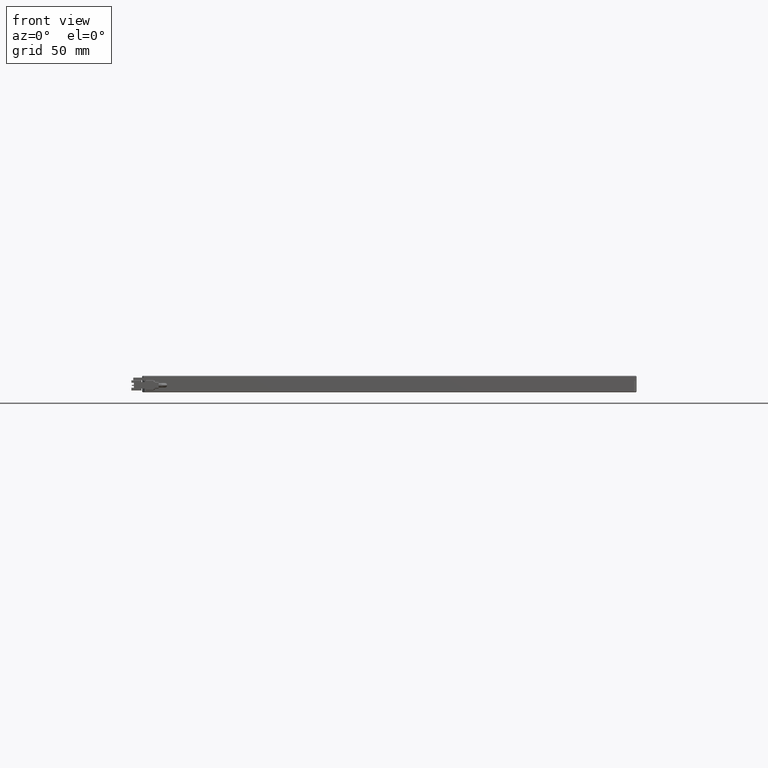
[diagram: clean part render]
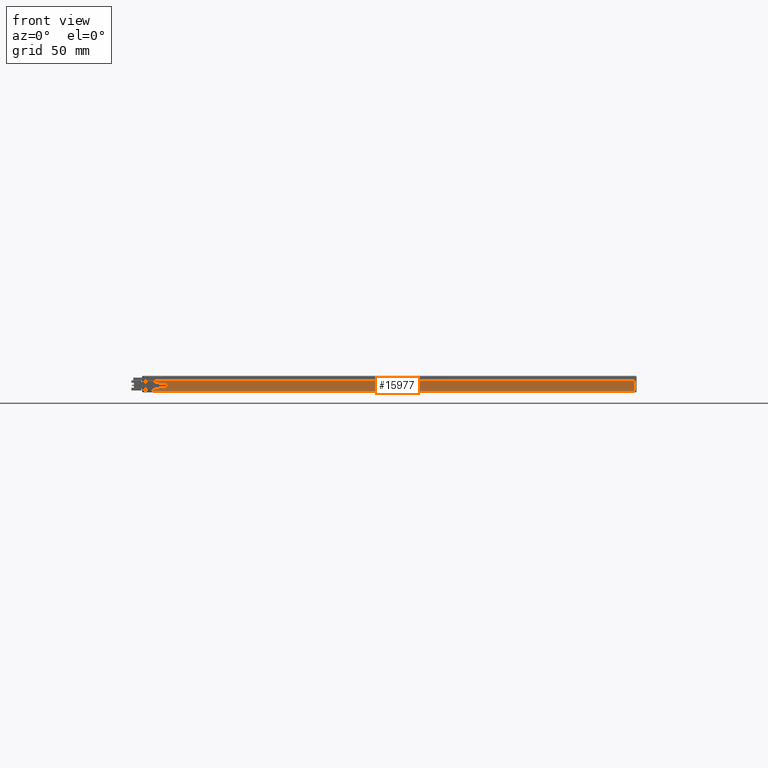
[diagram: same view with one face highlighted and labeled with its STEP entity id]
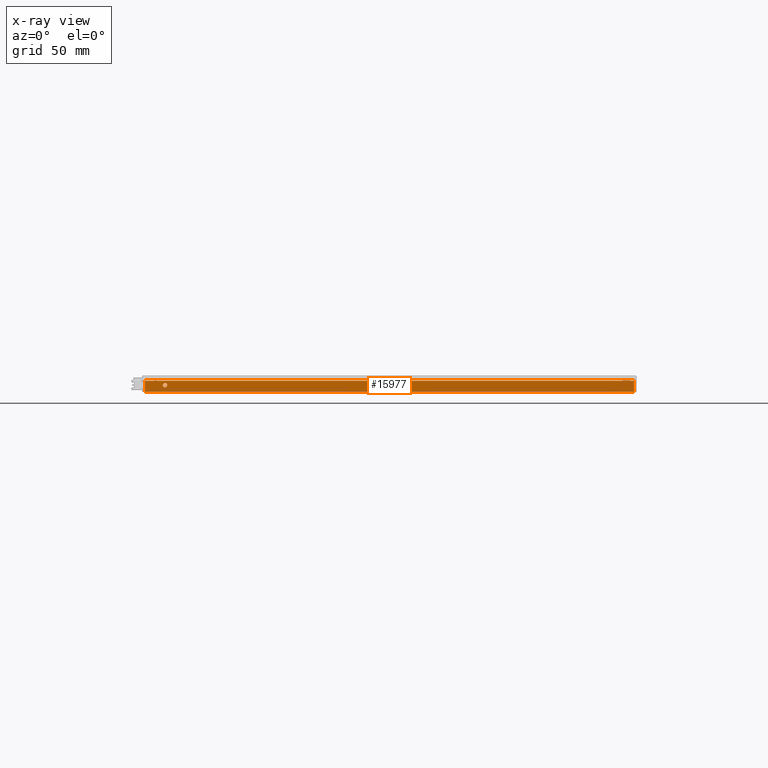
[diagram: x-ray of the same camera — body ghosted, the highlighted face saturated]
A machine part, front view. The second image highlights one B-rep face of the part: STEP entity #15977.
The next image is the same camera in x-ray: the body ghosted, the highlighted face saturated — about 0% of this face is hidden behind the body in this view.
In plain terms, the highlighted planar face has unit normal (-0, 1, 0).
Its self-contained STEP definition (entity closure, byte-faithful):
#337 = CARTESIAN_POINT ( 'NONE',  ( 158.8515982014623900, -174.5770270270269000, 4.250000000000000000 ) ) ;
#375 = VERTEX_POINT ( 'NONE', #3155 ) ;
#1095 = LINE ( 'NONE', #15168, #1889 ) ;
#1186 = FACE_BOUND ( 'NONE', #11223, .T. ) ;
#1313 = CARTESIAN_POINT ( 'NONE',  ( -211.1484017985377200, -174.5770270270270100, 0.7499999999999988900 ) ) ;
#1703 = DIRECTION ( 'NONE',  ( -2.135044278125300800E-016, 1.000000000000000000, 0.0000000000000000000 ) ) ;
#1889 = VECTOR ( 'NONE', #9873, 1000.000000000000000 ) ;
#3155 = CARTESIAN_POINT ( 'NONE',  ( -227.1484017985378000, -174.5770270270269300, 4.250000000000000000 ) ) ;
#3168 = CARTESIAN_POINT ( 'NONE',  ( 160.8515982014623100, -174.5770270270269300, 4.250000000000000000 ) ) ;
#4294 = DIRECTION ( 'NONE',  ( 0.0000000000000000000, 0.0000000000000000000, -1.000000000000000000 ) ) ;
#4665 = CIRCLE ( 'NONE', #5768, 1.750000000000001600 ) ;
#5356 = AXIS2_PLACEMENT_3D ( 'NONE', #1313, #13439, #20297 ) ;
#5768 = AXIS2_PLACEMENT_3D ( 'NONE', #16277, #14499, #4294 ) ;
#5872 = DIRECTION ( 'NONE',  ( 1.000000000000000000, 2.135044278125300800E-016, -0.0000000000000000000 ) ) ;
#5924 = EDGE_LOOP ( 'NONE', ( #19565, #11020, #15406, #20907 ) ) ;
#5979 = FACE_OUTER_BOUND ( 'NONE', #5924, .T. ) ;
#6203 = EDGE_CURVE ( 'NONE', #6654, #12330, #1095, .T. ) ;
#6654 = VERTEX_POINT ( 'NONE', #9940 ) ;
#6691 = ORIENTED_EDGE ( 'NONE', *, *, #19043, .F. ) ;
#6707 = VERTEX_POINT ( 'NONE', #20329 ) ;
#6815 = LINE ( 'NONE', #18713, #19367 ) ;
#7412 = VERTEX_POINT ( 'NONE', #337 ) ;
#7812 = EDGE_CURVE ( 'NONE', #6654, #375, #6815, .T. ) ;
#9040 = AXIS2_PLACEMENT_3D ( 'NONE', #3168, #1703, #11672 ) ;
#9873 = DIRECTION ( 'NONE',  ( 1.000000000000000000, 1.067522139062590800E-016, 1.067522139062650300E-016 ) ) ;
#9940 = CARTESIAN_POINT ( 'NONE',  ( -227.1484017985377200, -174.5770270270269300, -4.250000000000000900 ) ) ;
#10393 = ORIENTED_EDGE ( 'NONE', *, *, #15709, .F. ) ;
#10720 = CARTESIAN_POINT ( 'NONE',  ( 158.8515982014623100, -174.5770270270269300, -4.249999999999990200 ) ) ;
#11020 = ORIENTED_EDGE ( 'NONE', *, *, #21213, .T. ) ;
#11223 = EDGE_LOOP ( 'NONE', ( #10393, #6691 ) ) ;
#11322 = EDGE_CURVE ( 'NONE', #375, #7412, #11935, .T. ) ;
#11552 = CIRCLE ( 'NONE', #5356, 1.750000000000001600 ) ;
#11672 = DIRECTION ( 'NONE',  ( -1.000000000000000000, -2.135044278125300800E-016, 0.0000000000000000000 ) ) ;
#11898 = PLANE ( 'NONE',  #9040 ) ;
#11935 = LINE ( 'NONE', #14283, #15918 ) ;
#12330 = VERTEX_POINT ( 'NONE', #10720 ) ;
#13439 = DIRECTION ( 'NONE',  ( -0.0000000000000000000, -1.000000000000000000, -0.0000000000000000000 ) ) ;
#14283 = CARTESIAN_POINT ( 'NONE',  ( 160.8515982014623100, -174.5770270270269300, 4.250000000000000000 ) ) ;
#14499 = DIRECTION ( 'NONE',  ( -0.0000000000000000000, -1.000000000000000000, -0.0000000000000000000 ) ) ;
#15168 = CARTESIAN_POINT ( 'NONE',  ( 160.8515982014623100, -174.5770270270269900, -4.249999999999958300 ) ) ;
#15258 = DIRECTION ( 'NONE',  ( 0.0000000000000000000, 0.0000000000000000000, 1.000000000000000000 ) ) ;
#15406 = ORIENTED_EDGE ( 'NONE', *, *, #11322, .F. ) ;
#15709 = EDGE_CURVE ( 'NONE', #6707, #17853, #4665, .T. ) ;
#15918 = VECTOR ( 'NONE', #5872, 1000.000000000000000 ) ;
#15977 = ADVANCED_FACE ( 'NONE', ( #5979, #1186 ), #11898, .F. ) ;
#16277 = CARTESIAN_POINT ( 'NONE',  ( -211.1484017985377200, -174.5770270270270100, 0.7499999999999988900 ) ) ;
#16671 = VECTOR ( 'NONE', #18484, 1000.000000000000000 ) ;
#17541 = CARTESIAN_POINT ( 'NONE',  ( -211.1484017985377200, -174.5770270270270100, 2.500000000000000400 ) ) ;
#17853 = VERTEX_POINT ( 'NONE', #17541 ) ;
#18015 = LINE ( 'NONE', #21901, #16671 ) ;
#18484 = DIRECTION ( 'NONE',  ( 0.0000000000000000000, 0.0000000000000000000, 1.000000000000000000 ) ) ;
#18713 = CARTESIAN_POINT ( 'NONE',  ( -227.1484017985376100, -174.5770270270270100, 4.250000000000000000 ) ) ;
#19043 = EDGE_CURVE ( 'NONE', #17853, #6707, #11552, .T. ) ;
#19367 = VECTOR ( 'NONE', #15258, 1000.000000000000000 ) ;
#19565 = ORIENTED_EDGE ( 'NONE', *, *, #6203, .T. ) ;
#20297 = DIRECTION ( 'NONE',  ( 0.0000000000000000000, 0.0000000000000000000, -1.000000000000000000 ) ) ;
#20329 = CARTESIAN_POINT ( 'NONE',  ( -211.1484017985377200, -174.5770270270270100, -1.000000000000002700 ) ) ;
#20907 = ORIENTED_EDGE ( 'NONE', *, *, #7812, .F. ) ;
#21213 = EDGE_CURVE ( 'NONE', #12330, #7412, #18015, .T. ) ;
#21901 = CARTESIAN_POINT ( 'NONE',  ( 158.8515982014623100, -174.5770270270269300, 4.250000000000000000 ) ) ;